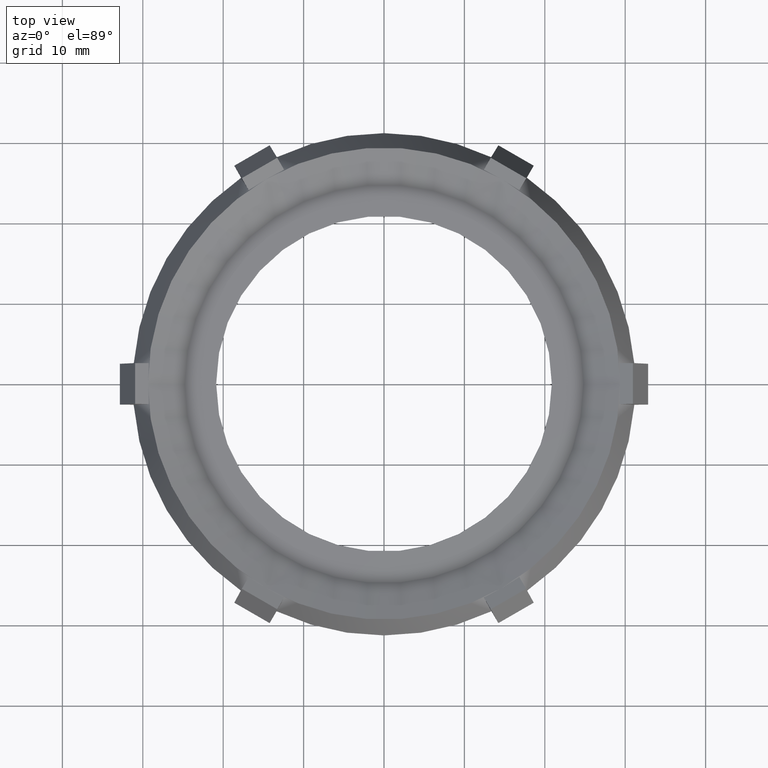
[diagram: clean part render]
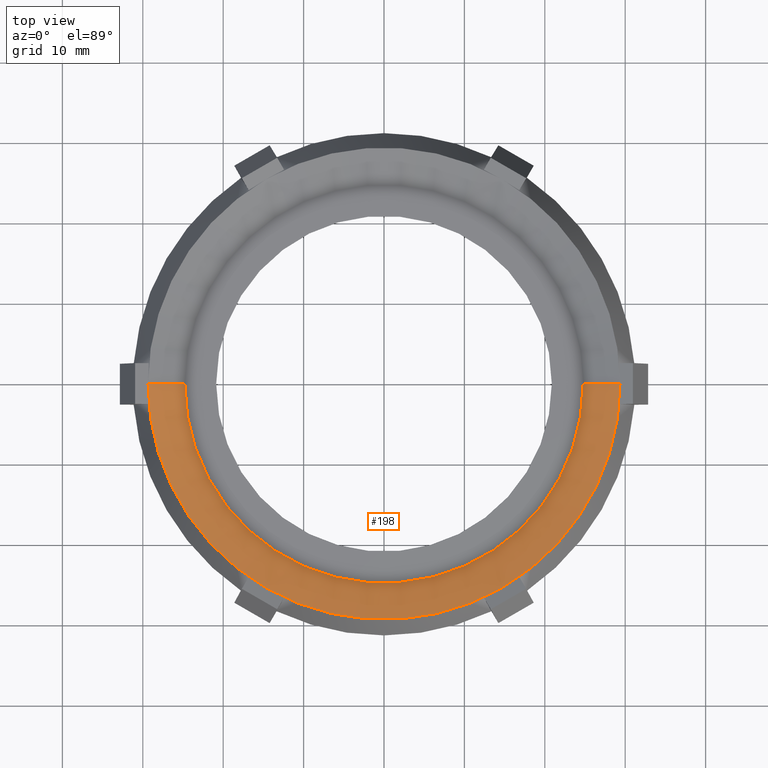
[diagram: same view with one face highlighted and labeled with its STEP entity id]
A machine part, top view. The second image highlights one B-rep face of the part: STEP entity #198.
In plain terms, the highlighted conical surface has half-angle 70 deg.
Its self-contained STEP definition (entity closure, byte-faithful):
#191 = ORIENTED_EDGE ( 'NONE', *, *, #192, .T. ) ;
#192 = EDGE_CURVE ( 'NONE', #298, #193, #1523, .T. ) ;
#193 = VERTEX_POINT ( 'NONE', #1555 ) ;
#194 = ORIENTED_EDGE ( 'NONE', *, *, #195, .F. ) ;
#195 = EDGE_CURVE ( 'NONE', #206, #193, #1420, .T. ) ;
#198 = ADVANCED_FACE ( 'NONE', ( #1423 ), #1421, .F. ) ;
#206 = VERTEX_POINT ( 'NONE', #1414 ) ;
#207 = ORIENTED_EDGE ( 'NONE', *, *, #208, .F. ) ;
#208 = EDGE_CURVE ( 'NONE', #209, #206, #1543, .T. ) ;
#209 = VERTEX_POINT ( 'NONE', #1538 ) ;
#235 = EDGE_CURVE ( 'NONE', #236, #209, #1402, .T. ) ;
#236 = VERTEX_POINT ( 'NONE', #1517 ) ;
#291 = ORIENTED_EDGE ( 'NONE', *, *, #308, .F. ) ;
#296 = EDGE_CURVE ( 'NONE', #297, #298, #1646, .T. ) ;
#297 = VERTEX_POINT ( 'NONE', #1637 ) ;
#298 = VERTEX_POINT ( 'NONE', #1636 ) ;
#300 = EDGE_LOOP ( 'NONE', ( #301, #191, #194, #207, #303, #291 ) ) ;
#301 = ORIENTED_EDGE ( 'NONE', *, *, #296, .T. ) ;
#303 = ORIENTED_EDGE ( 'NONE', *, *, #235, .F. ) ;
#308 = EDGE_CURVE ( 'NONE', #297, #236, #1629, .T. ) ;
#1400 = DIRECTION ( 'NONE',  ( -0.0000000000000000000, -0.0000000000000000000, -1.000000000000000000 ) ) ;
#1401 = AXIS2_PLACEMENT_3D ( 'NONE', #1412, #1400, #1518 ) ;
#1402 = CIRCLE ( 'NONE', #1401, 1.155573416405849500 ) ;
#1412 = CARTESIAN_POINT ( 'NONE',  ( 0.0000000000000000000, 0.0000000000000000000, 0.1700000000000001000 ) ) ;
#1414 = CARTESIAN_POINT ( 'NONE',  ( -0.5777867082029155600, -1.000755934545444400, 0.1700000000000001800 ) ) ;
#1419 = AXIS2_PLACEMENT_3D ( 'NONE', #1440, #1439, #1438 ) ;
#1420 = CIRCLE ( 'NONE', #1419, 1.155573416405849500 ) ;
#1421 = CONICAL_SURFACE ( 'NONE', #1422, 0.9755734164058494900, 1.221730476396036800 ) ;
#1422 = AXIS2_PLACEMENT_3D ( 'NONE', #1493, #1492, #1491 ) ;
#1423 = FACE_OUTER_BOUND ( 'NONE', #300, .T. ) ;
#1438 = DIRECTION ( 'NONE',  ( -1.000000000000000000, 0.0000000000000000000, 0.0000000000000000000 ) ) ;
#1439 = DIRECTION ( 'NONE',  ( -0.0000000000000000000, -0.0000000000000000000, -1.000000000000000000 ) ) ;
#1440 = CARTESIAN_POINT ( 'NONE',  ( 0.0000000000000000000, 0.0000000000000000000, 0.1700000000000001000 ) ) ;
#1491 = DIRECTION ( 'NONE',  ( 1.000000000000000000, 0.0000000000000000000, 0.0000000000000000000 ) ) ;
#1492 = DIRECTION ( 'NONE',  ( 0.0000000000000000000, 0.0000000000000000000, 1.000000000000000000 ) ) ;
#1493 = CARTESIAN_POINT ( 'NONE',  ( 0.0000000000000000000, 0.0000000000000000000, 0.1044853578320849000 ) ) ;
#1517 = CARTESIAN_POINT ( 'NONE',  ( 1.155573416405849500, 0.0000000000000000000, 0.1700000000000001800 ) ) ;
#1518 = DIRECTION ( 'NONE',  ( -1.000000000000000000, 0.0000000000000000000, 0.0000000000000000000 ) ) ;
#1520 = DIRECTION ( 'NONE',  ( -0.9396926207859105400, 1.150753554054427600E-016, 0.3420201433256630000 ) ) ;
#1521 = VECTOR ( 'NONE', #1520, 39.37007874015748900 ) ;
#1522 = CARTESIAN_POINT ( 'NONE',  ( -0.9755734164058494900, 1.194693404350807200E-016, 0.1044853578320849000 ) ) ;
#1523 = LINE ( 'NONE', #1522, #1521 ) ;
#1538 = CARTESIAN_POINT ( 'NONE',  ( 0.5777867082029365400, -1.000755934545432700, 0.1700000000000001000 ) ) ;
#1539 = DIRECTION ( 'NONE',  ( -1.000000000000000000, 0.0000000000000000000, 0.0000000000000000000 ) ) ;
#1540 = DIRECTION ( 'NONE',  ( -0.0000000000000000000, -0.0000000000000000000, -1.000000000000000000 ) ) ;
#1541 = CARTESIAN_POINT ( 'NONE',  ( 0.0000000000000000000, 0.0000000000000000000, 0.1700000000000001000 ) ) ;
#1542 = AXIS2_PLACEMENT_3D ( 'NONE', #1541, #1540, #1539 ) ;
#1543 = CIRCLE ( 'NONE', #1542, 1.155573416405849500 ) ;
#1555 = CARTESIAN_POINT ( 'NONE',  ( -1.155573416405849500, -8.069330711842693500E-015, 0.1700000000000001000 ) ) ;
#1626 = DIRECTION ( 'NONE',  ( 0.9396926207859105400, 0.0000000000000000000, 0.3420201433256630000 ) ) ;
#1627 = VECTOR ( 'NONE', #1626, 39.37007874015748900 ) ;
#1628 = CARTESIAN_POINT ( 'NONE',  ( 0.9755734164058494900, 0.0000000000000000000, 0.1044853578320849000 ) ) ;
#1629 = LINE ( 'NONE', #1628, #1627 ) ;
#1636 = CARTESIAN_POINT ( 'NONE',  ( -0.9755734164058494900, 1.304907976194821100E-016, 0.1044853578320849000 ) ) ;
#1637 = CARTESIAN_POINT ( 'NONE',  ( 0.9755734164058494900, 0.0000000000000000000, 0.1044853578320849000 ) ) ;
#1638 = DIRECTION ( 'NONE',  ( -1.000000000000000000, 0.0000000000000000000, 0.0000000000000000000 ) ) ;
#1639 = DIRECTION ( 'NONE',  ( -0.0000000000000000000, -0.0000000000000000000, -1.000000000000000000 ) ) ;
#1640 = CARTESIAN_POINT ( 'NONE',  ( 0.0000000000000000000, 0.0000000000000000000, 0.1044853578320849000 ) ) ;
#1641 = AXIS2_PLACEMENT_3D ( 'NONE', #1640, #1639, #1638 ) ;
#1646 = CIRCLE ( 'NONE', #1641, 0.9755734164058494900 ) ;